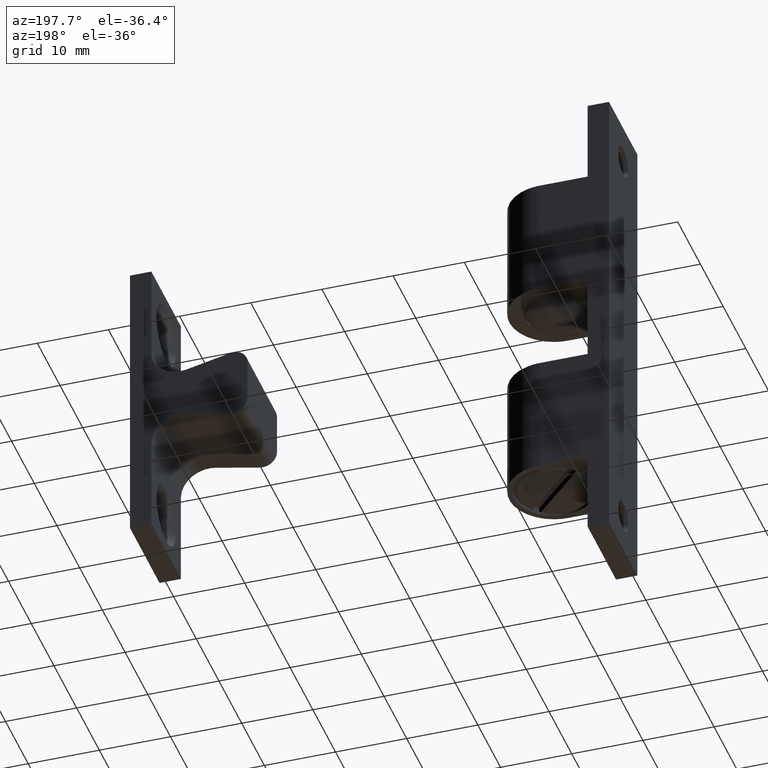
[diagram: clean part render]
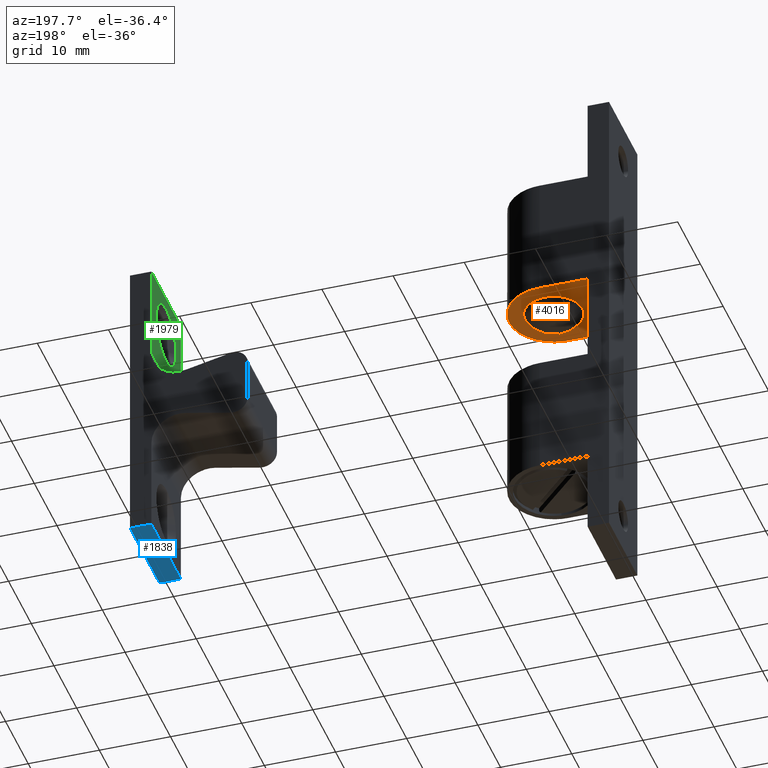
[diagram: same view with three faces highlighted in distinct colors, each labeled with its STEP entity id]
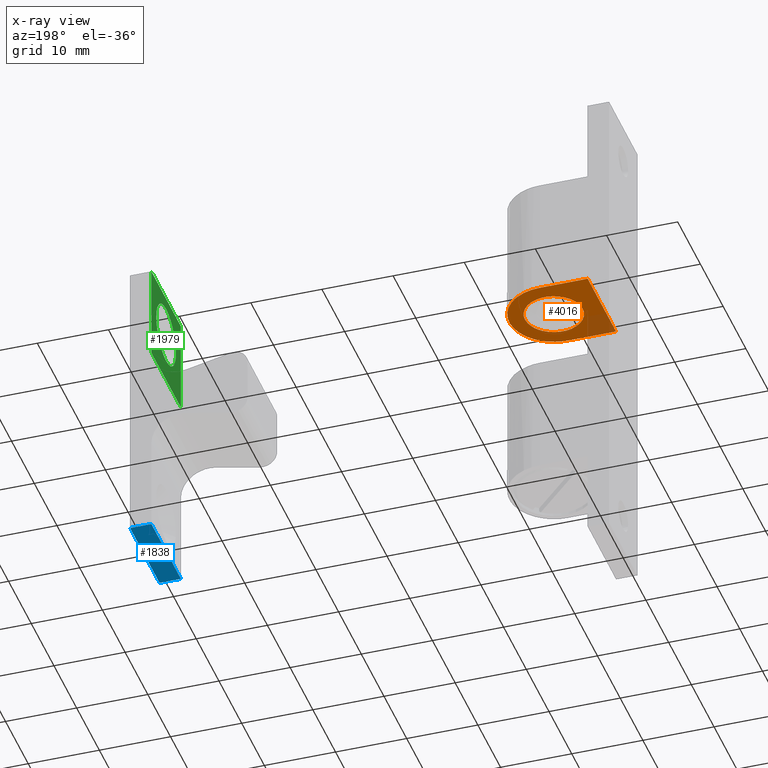
[diagram: x-ray of the same camera — body ghosted, the three highlighted faces saturated]
A machine part, auxiliary view with three faces highlighted in distinct colors.
The next image is the same camera in x-ray (body ghosted, the three faces saturated) — at least one of them is partly hidden behind the body in this view.
Their STEP definitions:

[orange] entity #4016 — the highlighted face is a freeform B-spline surface patch.
#3648=CARTESIAN_POINT('',(5.704168812221665,0.0,6.250000000000000));
#3649=VERTEX_POINT('',#3648);
#3650=CARTESIAN_POINT('',(13.795831187778340,0.0,6.250000000000000));
#3651=VERTEX_POINT('',#3650);
#3652=CARTESIAN_POINT('',(5.704168812221665,0.0,6.250000000000000));
#3653=CARTESIAN_POINT('',(5.704168812221667,4.045831187778336,6.249999999999999));
#3654=CARTESIAN_POINT('',(9.750000000000000,4.045831187778335,6.250000000000000));
#3655=CARTESIAN_POINT('',(13.795831187778335,4.045831187778336,6.249999999999999));
#3656=CARTESIAN_POINT('',(13.795831187778340,0.0,6.250000000000000));
#3664=(BOUNDED_CURVE()B_SPLINE_CURVE(2,(#3652,#3653,#3654,#3655,#3656),.UNSPECIFIED.,.F.,.U.)B_SPLINE_CURVE_WITH_KNOTS((3,2,3),(0.0,0.250000000000000,0.500000000000000),.UNSPECIFIED.)CURVE()GEOMETRIC_REPRESENTATION_ITEM()RATIONAL_B_SPLINE_CURVE((1.0,0.707106781186547,1.0,0.707106781186547,1.0))REPRESENTATION_ITEM(''));
#3665=EDGE_CURVE('',#3649,#3651,#3664,.T.);
#3667=CARTESIAN_POINT('',(13.795831187778340,0.0,6.250000000000000));
#3668=CARTESIAN_POINT('',(13.795831187778335,-4.045831187778336,6.249999999999999));
#3669=CARTESIAN_POINT('',(9.750000000000000,-4.045831187778335,6.250000000000000));
#3670=CARTESIAN_POINT('',(5.704168812221667,-4.045831187778336,6.249999999999999));
#3671=CARTESIAN_POINT('',(5.704168812221665,0.0,6.250000000000000));
#3679=(BOUNDED_CURVE()B_SPLINE_CURVE(2,(#3667,#3668,#3669,#3670,#3671),.UNSPECIFIED.,.F.,.U.)B_SPLINE_CURVE_WITH_KNOTS((3,2,3),(0.500000000000000,0.750000000000000,1.0),.UNSPECIFIED.)CURVE()GEOMETRIC_REPRESENTATION_ITEM()RATIONAL_B_SPLINE_CURVE((1.0,0.707106781186547,1.0,0.707106781186547,1.0))REPRESENTATION_ITEM(''));
#3680=EDGE_CURVE('',#3651,#3649,#3679,.T.);
#3703=CARTESIAN_POINT('',(9.749700000000001,-6.250000000000000,6.250000000000000));
#3704=VERTEX_POINT('',#3703);
#3712=CARTESIAN_POINT('',(9.749700000000001,6.250000000000000,6.250000000000000));
#3713=VERTEX_POINT('',#3712);
#3714=CARTESIAN_POINT('',(9.749700000000001,6.250000000000000,6.250000000000000));
#3715=CARTESIAN_POINT('',(15.999699999999995,6.249999999999999,6.249999999999999));
#3716=CARTESIAN_POINT('',(15.999700000000001,0.0,6.250000000000000));
#3717=CARTESIAN_POINT('',(15.999699999999995,-6.249999999999999,6.249999999999999));
#3718=CARTESIAN_POINT('',(9.749700000000001,-6.250000000000000,6.250000000000000));
#3726=(BOUNDED_CURVE()B_SPLINE_CURVE(2,(#3714,#3715,#3716,#3717,#3718),.UNSPECIFIED.,.F.,.U.)B_SPLINE_CURVE_WITH_KNOTS((3,2,3),(0.0,0.500000000000000,1.0),.UNSPECIFIED.)CURVE()GEOMETRIC_REPRESENTATION_ITEM()RATIONAL_B_SPLINE_CURVE((1.0,0.707106781186547,1.0,0.707106781186547,1.0))REPRESENTATION_ITEM(''));
#3727=EDGE_CURVE('',#3713,#3704,#3726,.T.);
#3884=CARTESIAN_POINT('',(3.0,6.250000000000000,6.250000000000000));
#3885=VERTEX_POINT('',#3884);
#3886=CARTESIAN_POINT('',(3.0,6.250000000000000,6.250000000000000));
#3887=CARTESIAN_POINT('',(9.749700000000001,6.250000000000000,6.250000000000000));
#3888=QUASI_UNIFORM_CURVE('',1,(#3886,#3887),.UNSPECIFIED.,.F.,.U.);
#3889=EDGE_CURVE('',#3885,#3713,#3888,.T.);
#3919=CARTESIAN_POINT('',(3.0,-6.250000000000000,6.250000000000000));
#3920=VERTEX_POINT('',#3919);
#3926=CARTESIAN_POINT('',(3.0,-6.250000000000000,6.250000000000000));
#3927=CARTESIAN_POINT('',(9.749700000000001,-6.250000000000000,6.250000000000000));
#3928=QUASI_UNIFORM_CURVE('',1,(#3926,#3927),.UNSPECIFIED.,.F.,.U.);
#3929=EDGE_CURVE('',#3920,#3704,#3928,.T.);
#3997=CARTESIAN_POINT('',(2.350665056640009,-6.874374975772573,6.250000000000000));
#3998=CARTESIAN_POINT('',(16.649034362227940,-6.874374975772573,6.250000000000000));
#3999=CARTESIAN_POINT('',(2.350665056640009,6.874375311048700,6.250000000000000));
#4000=CARTESIAN_POINT('',(16.649034362227940,6.874375311048700,6.250000000000000));
#4001=B_SPLINE_SURFACE_WITH_KNOTS('',1,1,((#3997,#3999),(#3998,#4000)),.UNSPECIFIED.,.F.,.F.,.U.,(2,2),(2,2),(0.0,14.298369305587929),(0.0,13.748750286821270),.UNSPECIFIED.);
#4002=ORIENTED_EDGE('',*,*,#3889,.T.);
#4003=ORIENTED_EDGE('',*,*,#3727,.T.);
#4004=ORIENTED_EDGE('',*,*,#3929,.F.);
#4005=CARTESIAN_POINT('',(3.0,-6.250000000000000,6.250000000000000));
#4006=CARTESIAN_POINT('',(3.0,6.250000000000000,6.250000000000000));
#4007=QUASI_UNIFORM_CURVE('',1,(#4005,#4006),.UNSPECIFIED.,.F.,.U.);
#4008=EDGE_CURVE('',#3920,#3885,#4007,.T.);
#4009=ORIENTED_EDGE('',*,*,#4008,.T.);
#4010=EDGE_LOOP('',(#4002,#4003,#4004,#4009));
#4011=FACE_OUTER_BOUND('',#4010,.T.);
#4012=ORIENTED_EDGE('',*,*,#3665,.F.);
#4013=ORIENTED_EDGE('',*,*,#3680,.F.);
#4014=EDGE_LOOP('',(#4012,#4013));
#4015=FACE_BOUND('',#4014,.T.);
#4016=ADVANCED_FACE('',(#4011,#4015),#4001,.F.);

[blue] entity #1838 — the highlighted face is a freeform B-spline surface patch.
#1551=CARTESIAN_POINT('',(67.233891871657690,6.500000000000000,-21.0));
#1552=VERTEX_POINT('',#1551);
#1558=CARTESIAN_POINT('',(64.233891871657590,6.500000000000000,-21.0));
#1559=VERTEX_POINT('',#1558);
#1560=CARTESIAN_POINT('',(64.233891871657590,6.500000000000000,-21.0));
#1561=CARTESIAN_POINT('',(67.233891871657690,6.500000000000000,-21.0));
#1562=QUASI_UNIFORM_CURVE('',1,(#1560,#1561),.UNSPECIFIED.,.F.,.U.);
#1563=EDGE_CURVE('',#1559,#1552,#1562,.T.);
#1717=CARTESIAN_POINT('',(64.233891871657590,-6.500000000000000,-21.0));
#1718=VERTEX_POINT('',#1717);
#1724=CARTESIAN_POINT('',(67.233891871657690,-6.500000000000000,-21.0));
#1725=VERTEX_POINT('',#1724);
#1726=CARTESIAN_POINT('',(64.233891871657590,-6.500000000000000,-21.0));
#1727=CARTESIAN_POINT('',(67.233891871657690,-6.500000000000000,-21.0));
#1728=QUASI_UNIFORM_CURVE('',1,(#1726,#1727),.UNSPECIFIED.,.F.,.U.);
#1729=EDGE_CURVE('',#1718,#1725,#1728,.T.);
#1819=CARTESIAN_POINT('',(64.084044350463515,-7.149349974803477,-21.0));
#1820=CARTESIAN_POINT('',(67.383744301294271,-7.149349974803477,-21.0));
#1821=CARTESIAN_POINT('',(64.084044350463515,7.149350323490650,-21.0));
#1822=CARTESIAN_POINT('',(67.383744301294271,7.149350323490650,-21.0));
#1823=B_SPLINE_SURFACE_WITH_KNOTS('',1,1,((#1819,#1821),(#1820,#1822)),.UNSPECIFIED.,.F.,.F.,.U.,(2,2),(2,2),(0.0,3.299699950830757),(0.0,14.298700298294129),.UNSPECIFIED.);
#1824=ORIENTED_EDGE('',*,*,#1563,.T.);
#1825=CARTESIAN_POINT('',(67.233891871657690,-6.500000000000000,-21.0));
#1826=CARTESIAN_POINT('',(67.233891871657690,6.500000000000000,-21.0));
#1827=QUASI_UNIFORM_CURVE('',1,(#1825,#1826),.UNSPECIFIED.,.F.,.U.);
#1828=EDGE_CURVE('',#1725,#1552,#1827,.T.);
#1829=ORIENTED_EDGE('',*,*,#1828,.F.);
#1830=ORIENTED_EDGE('',*,*,#1729,.F.);
#1831=CARTESIAN_POINT('',(64.233891871657590,-6.500000000000000,-21.0));
#1832=CARTESIAN_POINT('',(64.233891871657590,6.500000000000000,-21.0));
#1833=QUASI_UNIFORM_CURVE('',1,(#1831,#1832),.UNSPECIFIED.,.F.,.U.);
#1834=EDGE_CURVE('',#1718,#1559,#1833,.T.);
#1835=ORIENTED_EDGE('',*,*,#1834,.T.);
#1836=EDGE_LOOP('',(#1824,#1829,#1830,#1835));
#1837=FACE_OUTER_BOUND('',#1836,.T.);
#1838=ADVANCED_FACE('',(#1837),#1823,.F.);

[green] entity #1979 — the highlighted face is a freeform B-spline surface patch.
#1402=CARTESIAN_POINT('',(64.233891871589279,4.269940963368291,15.507447209564750));
#1403=VERTEX_POINT('',#1402);
#1409=CARTESIAN_POINT('',(64.233891871657590,0.0,10.699900000000000));
#1410=VERTEX_POINT('',#1409);
#1411=CARTESIAN_POINT('',(64.233891871589265,4.269940963368291,15.507447209564750));
#1412=CARTESIAN_POINT('',(64.233891871657590,4.300000000000000,15.254563715041463));
#1413=CARTESIAN_POINT('',(64.233891871657590,4.300000000000000,14.999900000000000));
#1414=CARTESIAN_POINT('',(64.233891871657590,4.300000000000000,10.699900000000000));
#1415=CARTESIAN_POINT('',(64.233891871657590,0.0,10.699900000000000));
#1423=(BOUNDED_CURVE()B_SPLINE_CURVE(2,(#1411,#1412,#1413,#1414,#1415),.UNSPECIFIED.,.F.,.U.)B_SPLINE_CURVE_WITH_KNOTS((3,2,3),(0.229562473473482,0.250000000000000,0.500000000000000),.UNSPECIFIED.)CURVE()GEOMETRIC_REPRESENTATION_ITEM()RATIONAL_B_SPLINE_CURVE((0.956026754105247,0.976055948284252,1.0,0.707106781186547,1.0))REPRESENTATION_ITEM(''));
#1424=EDGE_CURVE('',#1403,#1410,#1423,.T.);
#1426=CARTESIAN_POINT('',(64.233891871649661,-4.291979633218315,14.737391279940351));
#1427=VERTEX_POINT('',#1426);
#1428=CARTESIAN_POINT('',(64.233891871657590,0.0,10.699900000000000));
#1429=CARTESIAN_POINT('',(64.233891871657590,-4.045036087582544,10.699900000000000));
#1430=CARTESIAN_POINT('',(64.233891871649661,-4.291979633218316,14.737391279940356));
#1438=(BOUNDED_CURVE()B_SPLINE_CURVE(2,(#1428,#1429,#1430),.UNSPECIFIED.,.F.,.U.)B_SPLINE_CURVE_WITH_KNOTS((3,3),(0.500000000000000,0.739332962237202),.UNSPECIFIED.)CURVE()GEOMETRIC_REPRESENTATION_ITEM()RATIONAL_B_SPLINE_CURVE((1.0,0.719603993288750,0.976072041662987))REPRESENTATION_ITEM(''));
#1439=EDGE_CURVE('',#1410,#1427,#1438,.T.);
#1472=CARTESIAN_POINT('',(64.233891871657590,0.0,19.299900000000001));
#1473=VERTEX_POINT('',#1472);
#1474=CARTESIAN_POINT('',(64.233891871649661,-4.291979633218316,14.737391279940356));
#1475=CARTESIAN_POINT('',(64.233891871657605,-4.300000000000001,14.868523117756622));
#1476=CARTESIAN_POINT('',(64.233891871657590,-4.300000000000000,14.999900000000000));
#1477=CARTESIAN_POINT('',(64.233891871657590,-4.300000000000000,19.299900000000004));
#1478=CARTESIAN_POINT('',(64.233891871657590,0.0,19.299900000000001));
#1486=(BOUNDED_CURVE()B_SPLINE_CURVE(2,(#1474,#1475,#1476,#1477,#1478),.UNSPECIFIED.,.F.,.U.)B_SPLINE_CURVE_WITH_KNOTS((3,2,3),(0.739332962237202,0.750000000000000,1.0),.UNSPECIFIED.)CURVE()GEOMETRIC_REPRESENTATION_ITEM()RATIONAL_B_SPLINE_CURVE((0.976072041662987,0.987502787897798,1.0,0.707106781186547,1.0))REPRESENTATION_ITEM(''));
#1487=EDGE_CURVE('',#1427,#1473,#1486,.T.);
#1489=CARTESIAN_POINT('',(64.233891871657590,0.0,19.299900000000001));
#1490=CARTESIAN_POINT('',(64.233891871657590,3.819150460631395,19.299900000000004));
#1491=CARTESIAN_POINT('',(64.233891871589279,4.269940963368292,15.507447209564747));
#1499=(BOUNDED_CURVE()B_SPLINE_CURVE(2,(#1489,#1490,#1491),.UNSPECIFIED.,.F.,.U.)B_SPLINE_CURVE_WITH_KNOTS((3,3),(0.0,0.229562473473482),.UNSPECIFIED.)CURVE()GEOMETRIC_REPRESENTATION_ITEM()RATIONAL_B_SPLINE_CURVE((1.0,0.731050832902296,0.956026754105247))REPRESENTATION_ITEM(''));
#1500=EDGE_CURVE('',#1473,#1403,#1499,.T.);
#1520=CARTESIAN_POINT('',(64.233891871657590,6.500000000000000,7.500481313681910));
#1521=VERTEX_POINT('',#1520);
#1537=CARTESIAN_POINT('',(64.233891871657590,6.500000000000000,20.999900000000000));
#1538=VERTEX_POINT('',#1537);
#1539=CARTESIAN_POINT('',(64.233891871657590,6.500000000000000,20.999900000000000));
#1540=CARTESIAN_POINT('',(64.233891871657590,6.500000000000000,7.500481313681910));
#1541=QUASI_UNIFORM_CURVE('',1,(#1539,#1540),.UNSPECIFIED.,.F.,.U.);
#1542=EDGE_CURVE('',#1538,#1521,#1541,.T.);
#1738=CARTESIAN_POINT('',(64.233891871657590,-6.500000000000000,20.999900000000000));
#1739=VERTEX_POINT('',#1738);
#1745=CARTESIAN_POINT('',(64.233891871657590,-6.500000000000000,7.500481313681910));
#1746=VERTEX_POINT('',#1745);
#1747=CARTESIAN_POINT('',(64.233891871657590,-6.500000000000000,20.999900000000000));
#1748=CARTESIAN_POINT('',(64.233891871657590,-6.500000000000000,7.500481313681910));
#1749=QUASI_UNIFORM_CURVE('',1,(#1747,#1748),.UNSPECIFIED.,.F.,.U.);
#1750=EDGE_CURVE('',#1739,#1746,#1749,.T.);
#1791=CARTESIAN_POINT('',(64.233891871657590,-6.500000000000000,7.500481313681910));
#1792=CARTESIAN_POINT('',(64.233891871657590,6.500000000000000,7.500481313681910));
#1793=QUASI_UNIFORM_CURVE('',1,(#1791,#1792),.UNSPECIFIED.,.F.,.U.);
#1794=EDGE_CURVE('',#1746,#1521,#1793,.T.);
#1805=CARTESIAN_POINT('',(64.233891871657590,-6.500000000000000,20.999900000000000));
#1806=CARTESIAN_POINT('',(64.233891871657590,6.500000000000000,20.999900000000000));
#1807=QUASI_UNIFORM_CURVE('',1,(#1805,#1806),.UNSPECIFIED.,.F.,.U.);
#1808=EDGE_CURVE('',#1739,#1538,#1807,.T.);
#1962=CARTESIAN_POINT('',(64.233891871657590,-7.149349974803478,21.674196824277281));
#1963=CARTESIAN_POINT('',(64.233891871657590,-7.149349974803478,6.826184972181458));
#1964=CARTESIAN_POINT('',(64.233891871657590,7.149350323490650,21.674196824277281));
#1965=CARTESIAN_POINT('',(64.233891871657590,7.149350323490650,6.826184972181458));
#1966=B_SPLINE_SURFACE_WITH_KNOTS('',1,1,((#1962,#1964),(#1963,#1965)),.UNSPECIFIED.,.F.,.F.,.U.,(2,2),(2,2),(0.0,14.848011852095819),(0.0,14.298700298294129),.UNSPECIFIED.);
#1967=ORIENTED_EDGE('',*,*,#1542,.T.);
#1968=ORIENTED_EDGE('',*,*,#1794,.F.);
#1969=ORIENTED_EDGE('',*,*,#1750,.F.);
#1970=ORIENTED_EDGE('',*,*,#1808,.T.);
#1971=EDGE_LOOP('',(#1967,#1968,#1969,#1970));
#1972=FACE_OUTER_BOUND('',#1971,.T.);
#1973=ORIENTED_EDGE('',*,*,#1439,.F.);
#1974=ORIENTED_EDGE('',*,*,#1424,.F.);
#1975=ORIENTED_EDGE('',*,*,#1500,.F.);
#1976=ORIENTED_EDGE('',*,*,#1487,.F.);
#1977=EDGE_LOOP('',(#1973,#1974,#1975,#1976));
#1978=FACE_BOUND('',#1977,.T.);
#1979=ADVANCED_FACE('',(#1972,#1978),#1966,.F.);